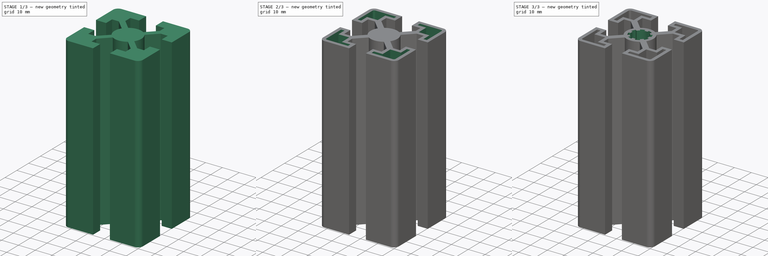
[diagram: build sequence overview — one tinted view per stage of 3, left to right]
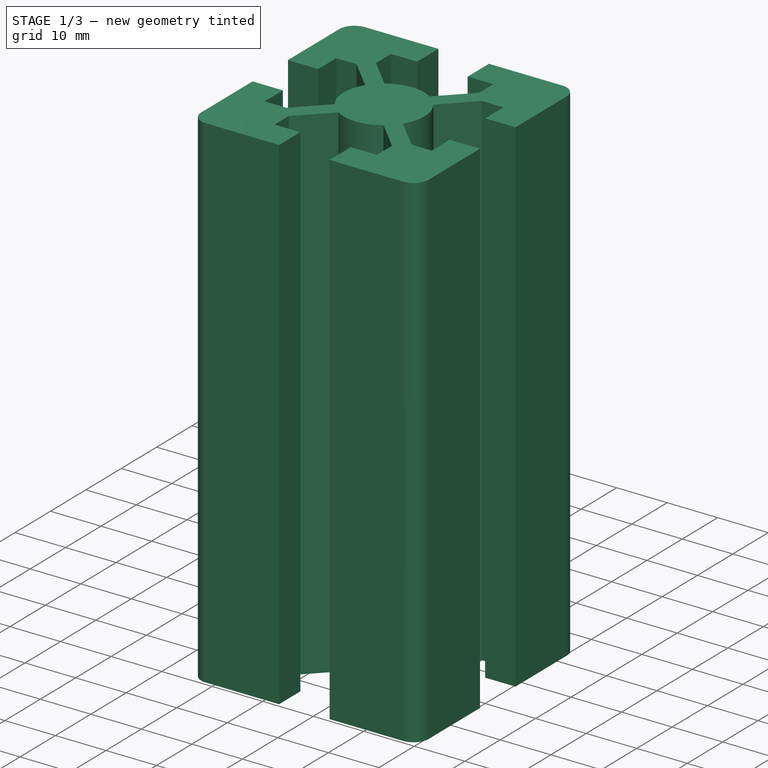
[diagram: stage 1 of 3 — iso view after this stage's code; geometry added in this stage tinted green]
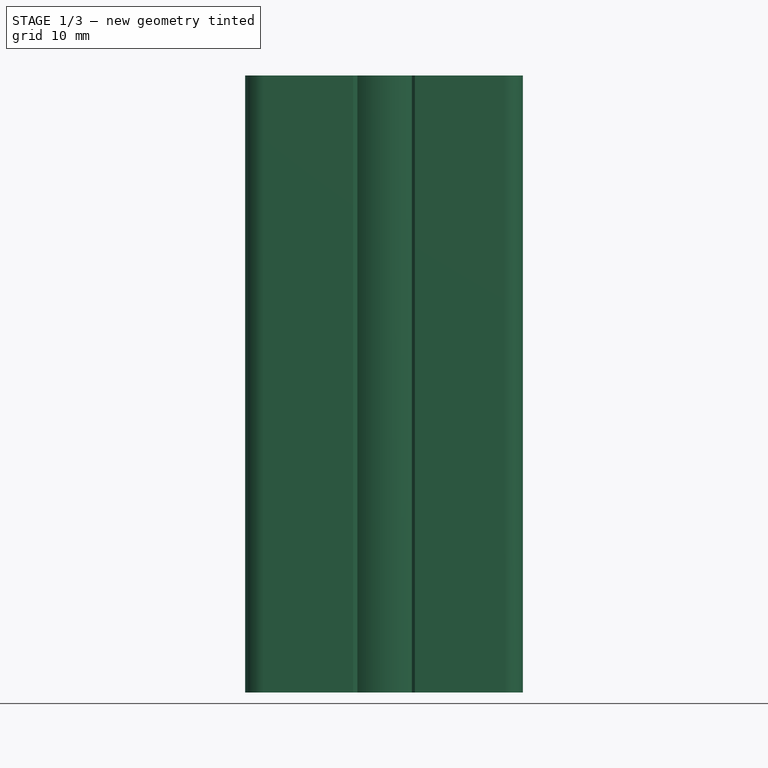
[diagram: stage 1 of 3 — front view after this stage's code; geometry added in this stage tinted green]
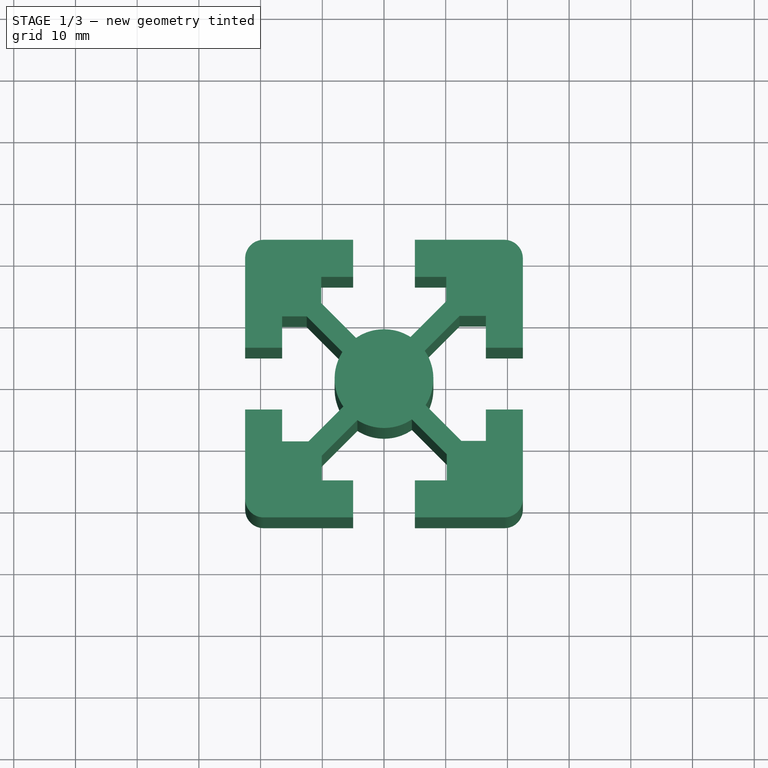
[diagram: stage 1 of 3 — top view after this stage's code; geometry added in this stage tinted green]
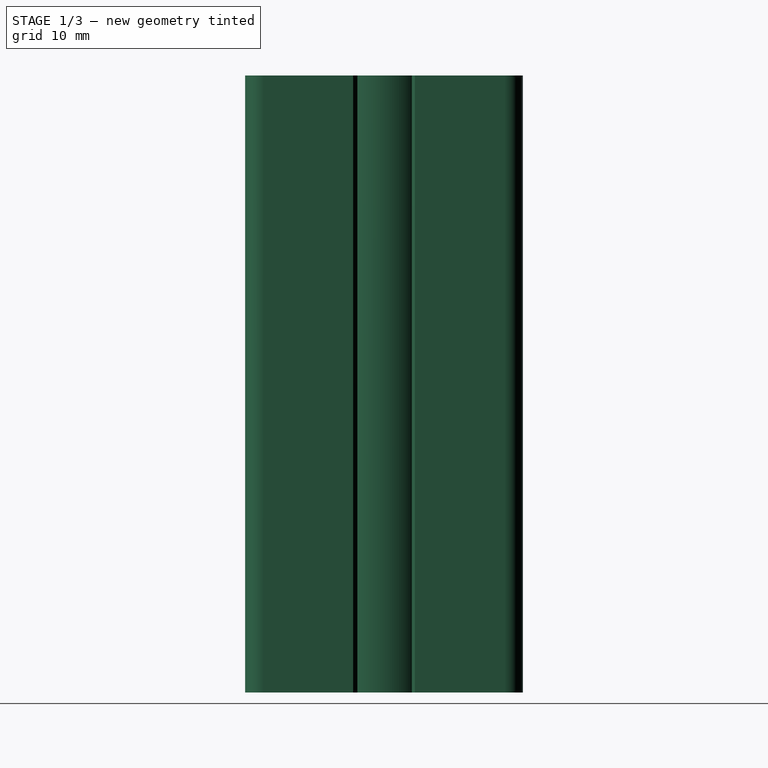
[diagram: stage 1 of 3 — right view after this stage's code; geometry added in this stage tinted green]
FCSTD DOCUMENT  (FreeCAD 0.16R6692 (Git))
Label: 45x45 mm 
License: All rights reserved
LicenseURL: http://en.wikipedia.org/wiki/All_rights_reserved
objects: Sketcher::SketchObject×5, PartDesign::Pocket×4, PartDesign::PolarPattern×3, PartDesign::Pad×1
note: 18 computed .brp shape members not serialized (recipe doc carries the construction recipe); baked Part::Feature solids carry a one-line shape summary decoded from their .brp

FEATURE [Sketcher::SketchObject] Sketch
  sketch-geometry (8):
    g0: LineSegment StartX=-19.5 StartY=22.5 StartZ=0 EndX=19.5 EndY=22.5 EndZ=0
    g1: LineSegment StartX=22.5 StartY=19.5 StartZ=0 EndX=22.5 EndY=-19.5 EndZ=0
    g2: LineSegment StartX=19.5 StartY=-22.5 StartZ=0 EndX=-19.5 EndY=-22.5 EndZ=0
    g3: LineSegment StartX=-22.5 StartY=-19.5 StartZ=0 EndX=-22.5 EndY=19.5 EndZ=0
    g4: ArcOfCircle CenterX=-19.5 CenterY=19.5 CenterZ=0 NormalX=0 NormalY=0 NormalZ=1 Radius=3 StartAngle=1.5708 EndAngle=3.14159
    g5: ArcOfCircle CenterX=19.5 CenterY=19.5 CenterZ=0 NormalX=0 NormalY=0 NormalZ=1 Radius=3 StartAngle=0 EndAngle=1.5708
    g6: ArcOfCircle CenterX=19.5 CenterY=-19.5 CenterZ=0 NormalX=0 NormalY=0 NormalZ=1 Radius=3 StartAngle=4.71239 EndAngle=6.28319
    g7: ArcOfCircle CenterX=-19.5 CenterY=-19.5 CenterZ=0 NormalX=0 NormalY=0 NormalZ=1 Radius=3 StartAngle=3.14159 EndAngle=4.71239
  constraints (20):
    c: Horizontal(g0)
    c: Horizontal(g2)
    c: Vertical(g1)
    c: Vertical(g3)
    c: Tangent(g3,g4) = 1.5708
    c: Tangent(g0,g4) = 1.5708
    c: Tangent(g0,g5) = 1.5708
    c: Tangent(g1,g5) = 1.5708
    c: Tangent(g1,g6) = 1.5708
    c: Tangent(g2,g6) = 1.5708
    c: Tangent(g2,g7) = 1.5708
    c: Tangent(g3,g7) = 1.5708
    c: Equal(g7,g6)
    c: Equal(g6,g5)
    c: Equal(g5,g4)
    c: Radius(g4) = 3
    c: Symmetric(g0,g0,g-2)
    c: Symmetric(g3,g3,g-1)
    c: Equal(g3,g0)
    c: DistanceX(g3,g1) = 45
FEATURE [PartDesign::Pad] Pad
  Length = 100
  Length2 = 100
  Sketch = -> Sketch
  Type = 0
FEATURE [Sketcher::SketchObject] Sketch001
  ExternalGeometry = -> [Pad]
  Placement = pos=(0,0,100) rot=(0,0,1;0rad)
  Support = -> Pad [Face10]
  sketch-geometry (13):
    g0: LineSegment StartX=-5 StartY=24.7683 StartZ=0 EndX=-5 EndY=16.5 EndZ=0
    g1: LineSegment StartX=-10.1639 StartY=16.5 StartZ=0 EndX=-10.1639 EndY=12.2428 EndZ=0
    g2: LineSegment StartX=-5 StartY=16.5 StartZ=0 EndX=-10.1639 EndY=16.5 EndZ=0
    g3: LineSegment StartX=-10.1639 StartY=16.5 StartZ=0 EndX=-10.1639 EndY=12.2428 EndZ=0
    g4: LineSegment StartX=-10.1639 StartY=12.2428 StartZ=0 EndX=-4.52106 EndY=6.6 EndZ=0
    g5: ArcOfCircle CenterX=0 CenterY=0 CenterZ=0 NormalX=0 NormalY=0 NormalZ=1 Radius=8 StartAngle=1.00204 EndAngle=2.17139
    g6: LineSegment StartX=5 StartY=24.7683 StartZ=0 EndX=5 EndY=16.5 EndZ=0
    g7: LineSegment StartX=5 StartY=16.5 StartZ=0 EndX=10.0823 EndY=16.5 EndZ=0
    g8: LineSegment StartX=10.0823 StartY=16.5 StartZ=0 EndX=10.0823 EndY=12.5141 EndZ=0
    g9: LineSegment StartX=10.0823 StartY=12.5141 StartZ=0 EndX=4.3087 EndY=6.74056 EndZ=0
    g10: LineSegment StartX=-5 StartY=24.7683 StartZ=0 EndX=5 EndY=24.7683 EndZ=0
    g11: LineSegment [constr] StartX=0 StartY=0 StartZ=0 EndX=-18.6196 EndY=18.6196 EndZ=0
    g12: LineSegment [constr] StartX=-0.0210618 StartY=-0.153469 StartZ=0 EndX=18.2893 EndY=18.1569 EndZ=0
  constraints (32):
    c: Vertical(g0)
    c: Vertical(g1)
    c: Coincident(g0,g2)
    c: Coincident(g2,g1)
    c: Coincident(g2,g3)
    c: Coincident(g3,g1)
    c: Coincident(g3,g4)
    c: Coincident(g5,g-1)
    c: Radius(g5) = 8
    c: Horizontal(g2)
    c: DistanceY(g0,g-3) = 6
    c: Vertical(g6)
    c: Vertical(g8)
    c: Coincident(g6,g7)
    c: Coincident(g7,g8)
    c: Horizontal(g7)
    c: Coincident(g10,g0)
    c: Coincident(g10,g6)
    c: Horizontal(g10)
    c: Symmetric(g0,g6,g-2)
    c: DistanceX(g10,g10) = 10
    c: Angle(g4,g-2) = 2.35619
    c: Angle(g-2,g9) = 2.35619
    c: Coincident(g9,g8)
    c: DistanceY(g-1,g6) = 16.5
    c: Coincident(g4,g5)
    c: Coincident(g9,g5)
    c: Coincident(g11,g-1)
    c: Angle(g-1,g11) = 2.35619
    c: Perpendicular(g12,g11)
    c: DistanceY(g-1,g4) = 6.6
    c: DistanceX(g4,g12) = 4.5
FEATURE [PartDesign::Pocket] Pocket
  Length = 5
  Sketch = -> Sketch001
  Type = 1
FEATURE [PartDesign::PolarPattern] PolarPattern
  Angle = 360
  Axis = -> Sketch001 [N_Axis]
  Occurrences = 4
  Originals = -> [Pocket]
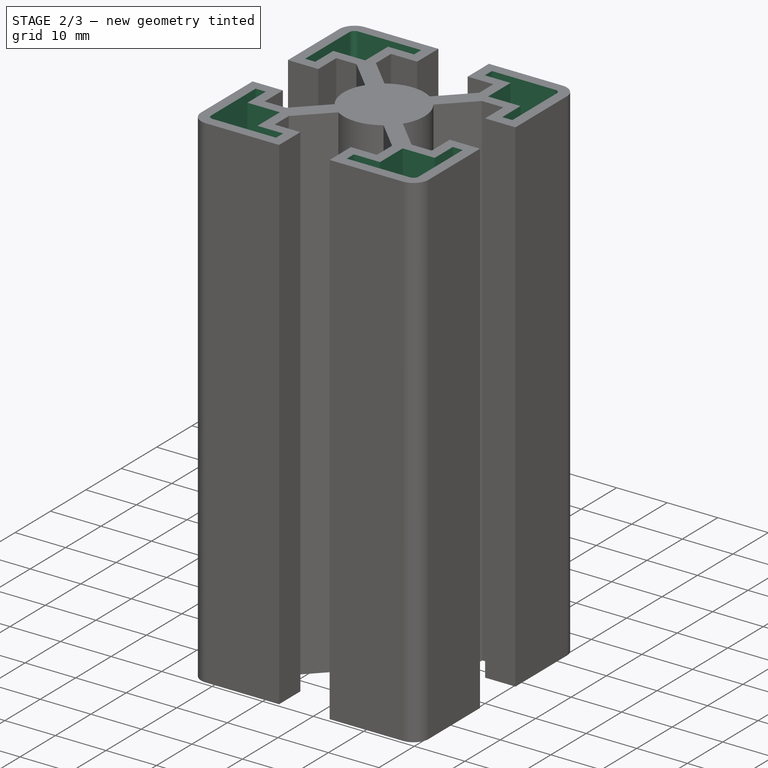
[diagram: stage 2 of 3 — iso view after this stage's code; geometry added in this stage tinted green]
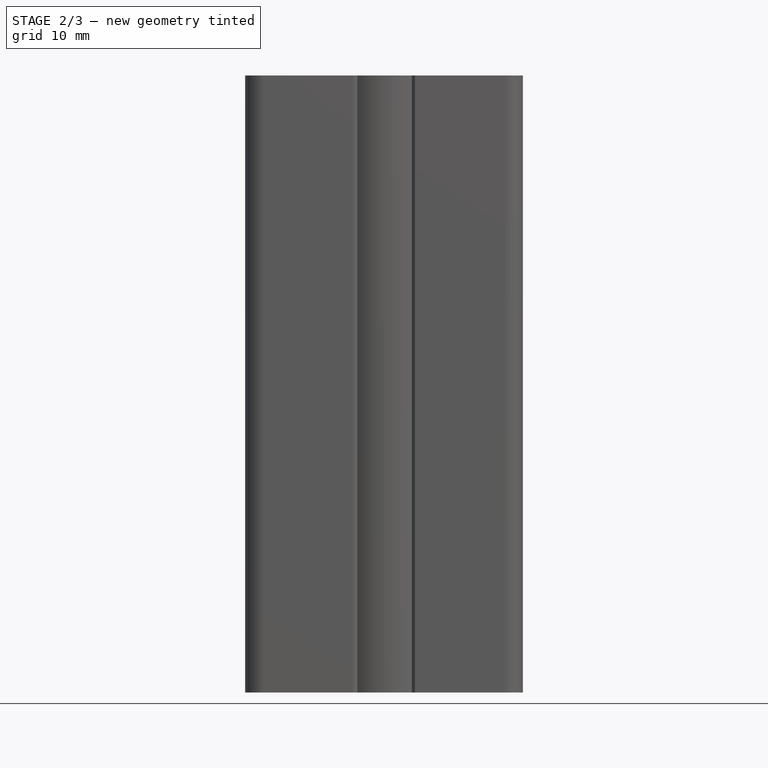
[diagram: stage 2 of 3 — front view after this stage's code; geometry added in this stage tinted green]
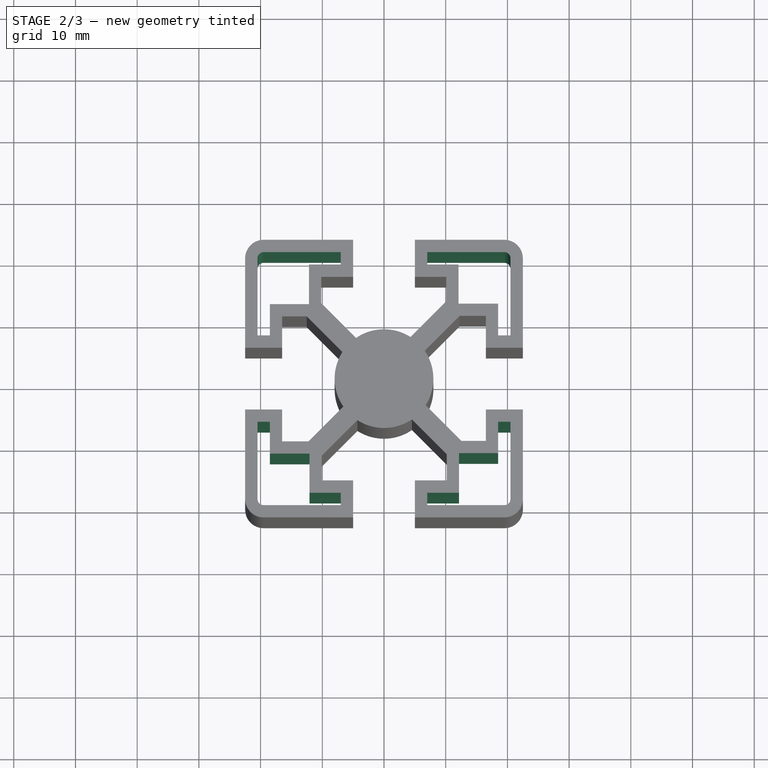
[diagram: stage 2 of 3 — top view after this stage's code; geometry added in this stage tinted green]
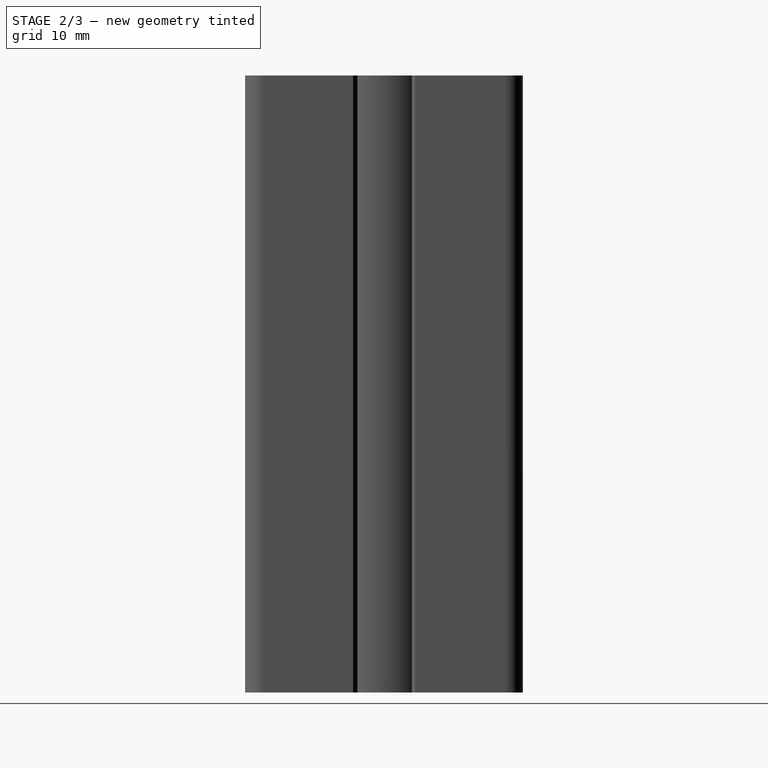
[diagram: stage 2 of 3 — right view after this stage's code; geometry added in this stage tinted green]
FEATURE [Sketcher::SketchObject] Sketch002
  ExternalGeometry = -> [PolarPattern]
  Placement = pos=(0,0,100) rot=(0,0,1;0rad)
  Support = -> PolarPattern [Face4]
  sketch-geometry (9):
    g0: LineSegment StartX=-20.5 StartY=19.5 StartZ=0 EndX=-20.5 EndY=7 EndZ=0
    g1: LineSegment StartX=-19.5 StartY=20.5 StartZ=0 EndX=-7 EndY=20.5 EndZ=0
    g2: LineSegment StartX=-7 StartY=20.5 StartZ=0 EndX=-7 EndY=18.5 EndZ=0
    g3: LineSegment StartX=-7 StartY=18.5 StartZ=0 EndX=-12.1639 EndY=18.5 EndZ=0
    g4: LineSegment StartX=-12.1639 StartY=18.5 StartZ=0 EndX=-12.1639 EndY=12.0823 EndZ=0
    g5: LineSegment StartX=-12.1639 StartY=12.0823 StartZ=0 EndX=-18.5 EndY=12.0823 EndZ=0
    g6: LineSegment StartX=-18.5 StartY=12.0823 StartZ=0 EndX=-18.5 EndY=7 EndZ=0
    g7: LineSegment StartX=-20.5 StartY=7 StartZ=0 EndX=-18.5 EndY=7 EndZ=0
    g8: ArcOfCircle CenterX=-19.5 CenterY=19.5 CenterZ=0 NormalX=0 NormalY=0 NormalZ=1 Radius=1 StartAngle=1.5708 EndAngle=3.14159
  constraints (26):
    c: Vertical(g0)
    c: Horizontal(g1)
    c: Coincident(g1,g2)
    c: Vertical(g2)
    c: Coincident(g3,g2)
    c: Coincident(g4,g3)
    c: Vertical(g4)
    c: Coincident(g5,g4)
    c: Coincident(g6,g5)
    c: Vertical(g6)
    c: Coincident(g7,g0)
    c: Coincident(g7,g6)
    c: Horizontal(g7)
    c: Horizontal(g5)
    c: Tangent(g0,g8) = -1.5708
    c: Tangent(g1,g8) = 1.5708
    c: Radius(g8) = 1
    c: DistanceX(g-5,g0) = 2
    c: DistanceX(g6,g-6) = 2
    c: DistanceY(g-5,g0) = 2
    c: Horizontal(g3)
    c: DistanceY(g1,g-10) = 2
    c: DistanceX(g2,g-10) = 2
    c: DistanceY(g-10,g2) = 2
    c: DistanceX(g3,g-9) = 2
    c: DistanceY(g-7,g4) = 2
FEATURE [PartDesign::Pocket] Pocket001
  Length = 5
  Sketch = -> Sketch002
  Type = 1
FEATURE [PartDesign::PolarPattern] PolarPattern001
  Angle = 360
  Axis = -> Sketch002 [N_Axis]
  Occurrences = 4
  Originals = -> [Pocket001]
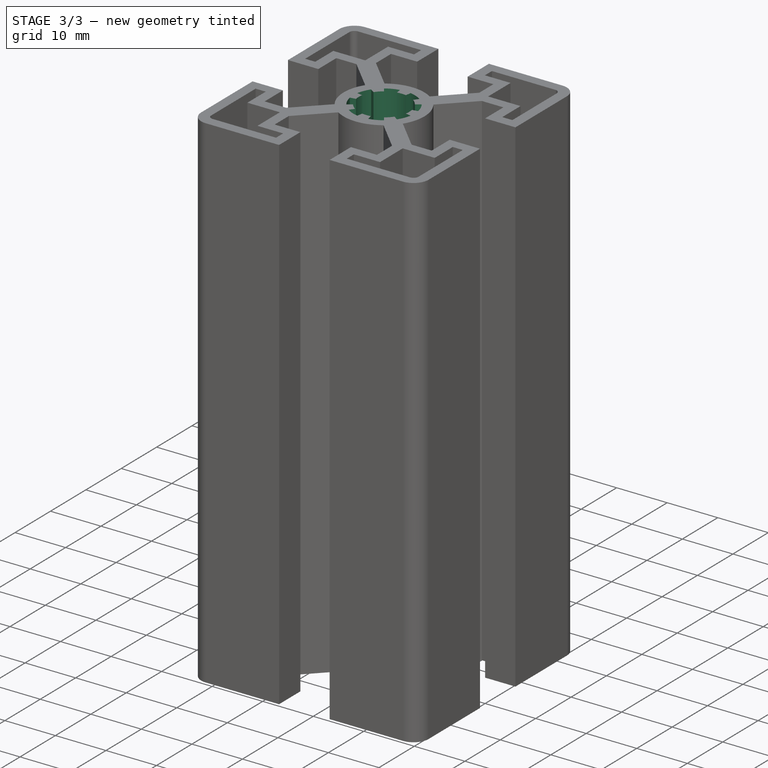
[diagram: stage 3 of 3 — iso view after this stage's code; geometry added in this stage tinted green]
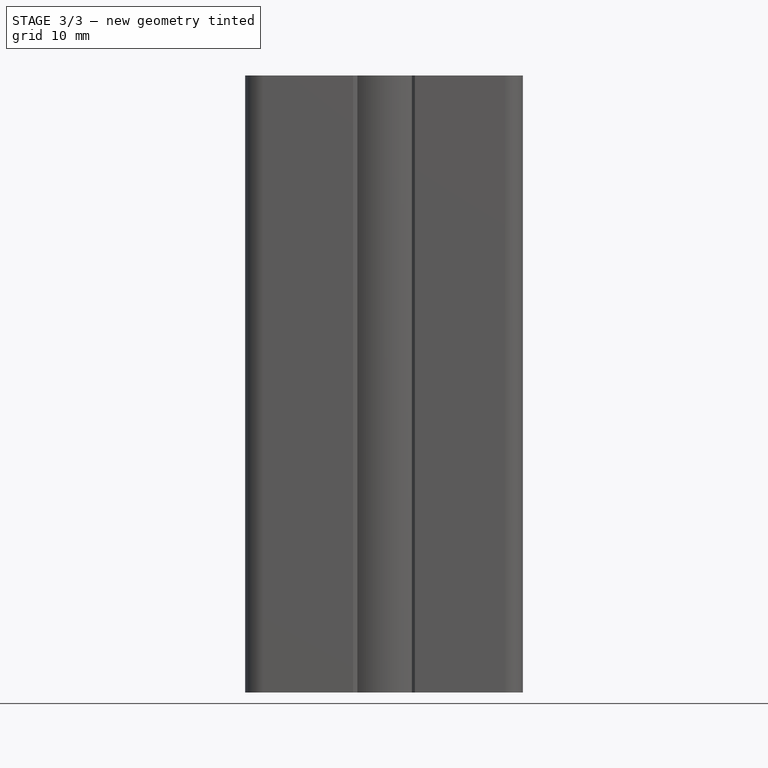
[diagram: stage 3 of 3 — front view after this stage's code; geometry added in this stage tinted green]
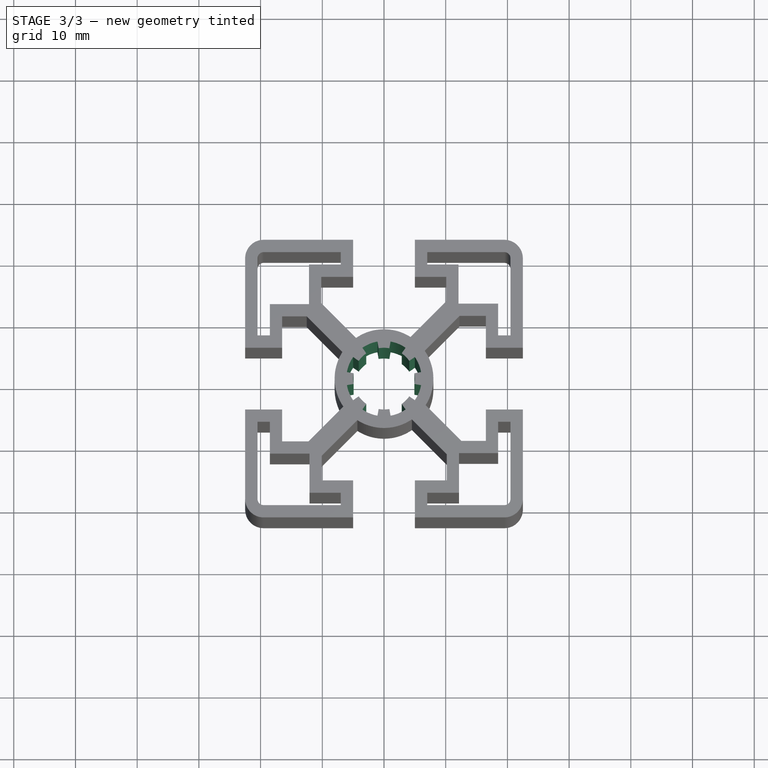
[diagram: stage 3 of 3 — top view after this stage's code; geometry added in this stage tinted green]
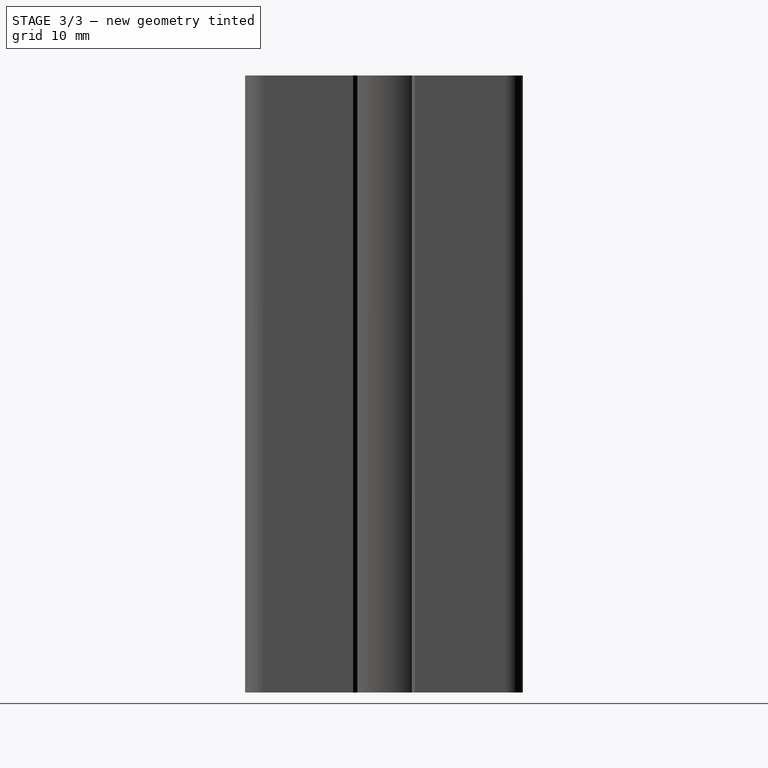
[diagram: stage 3 of 3 — right view after this stage's code; geometry added in this stage tinted green]
FEATURE [Sketcher::SketchObject] Sketch004
  Placement = pos=(0,0,100) rot=(0,0,1;0rad)
  Support = -> PolarPattern001 [Face4]
  sketch-geometry (1):
    g0: Circle CenterX=0 CenterY=0 CenterZ=0 NormalX=0 NormalY=0 NormalZ=1 Radius=5
  constraints (2):
    c: Coincident(g0,g-1)
    c: Radius(g0) = 5
FEATURE [PartDesign::Pocket] Pocket002
  Length = 5
  Sketch = -> Sketch004
  Type = 1
FEATURE [Sketcher::SketchObject] Sketch005
  Placement = pos=(0,0,100) rot=(0,0,1;0rad)
  Support = -> Pocket002 [Face4]
  sketch-geometry (3):
    g0: ArcOfCircle CenterX=0 CenterY=0 CenterZ=0 NormalX=0 NormalY=0 NormalZ=1 Radius=6.1 StartAngle=0.959931 EndAngle=1.39626
    g1: LineSegment StartX=0 StartY=0 StartZ=0 EndX=1.05925 EndY=6.00733 EndZ=0
    g2: LineSegment StartX=0 StartY=0 StartZ=0 EndX=3.49882 EndY=4.99683 EndZ=0
  constraints (8):
    c: Coincident(g0,g-1)
    c: Radius(g0) = 6.1
    c: Coincident(g1,g-1)
    c: Coincident(g2,g-1)
    c: Angle(g1,g-2) = 0.174533
    c: Angle(g2,g1) = 0.436332
    c: Coincident(g0,g2)
    c: Coincident(g0,g1)
FEATURE [PartDesign::Pocket] Pocket003
  Length = 5
  Sketch = -> Sketch005
  Type = 1
FEATURE [PartDesign::PolarPattern] PolarPattern002
  Angle = 360
  Axis = -> Sketch005 [N_Axis]
  Occurrences = 8
  Originals = -> [Pocket003]
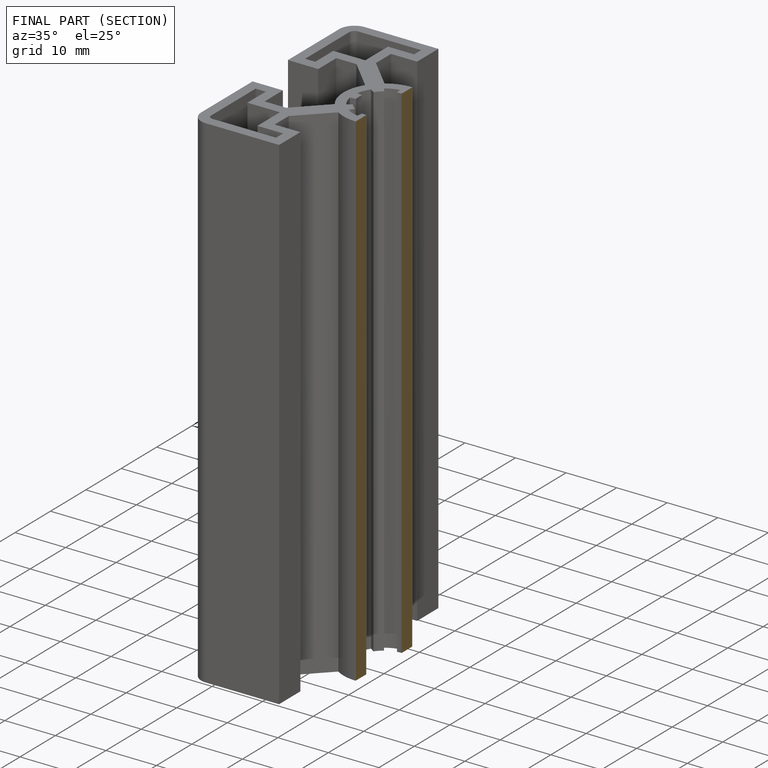
[diagram: finished part — half-section view (interior)]
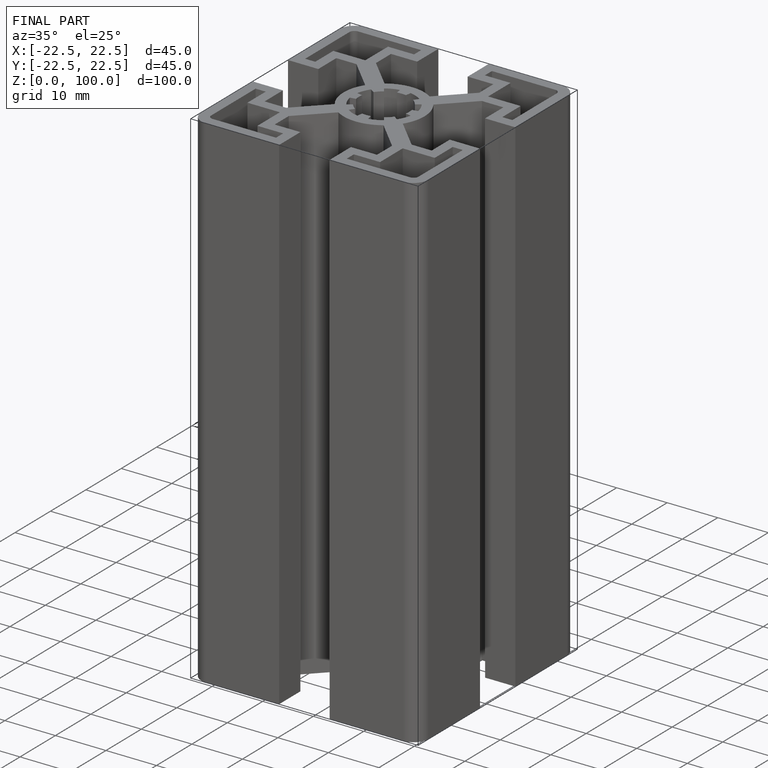
[diagram: finished part — iso view with bounding-box wireframe]
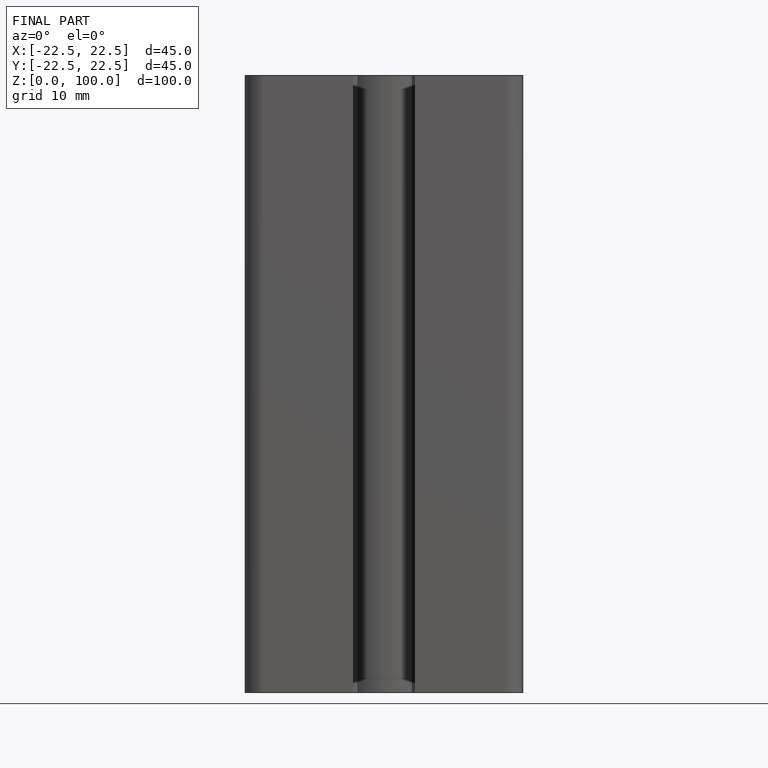
[diagram: finished part — front view with bounding-box wireframe]
